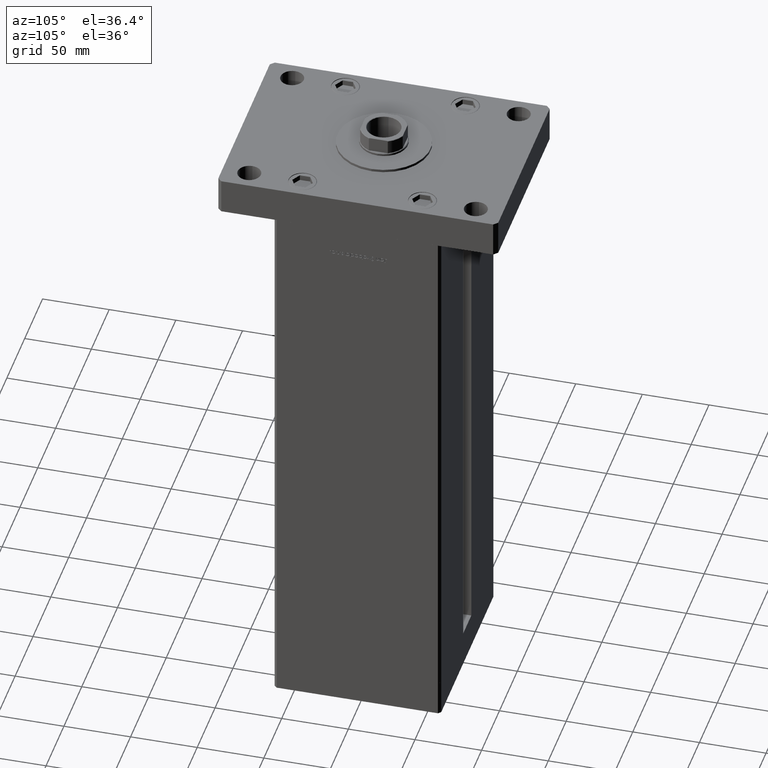
[diagram: clean part render]
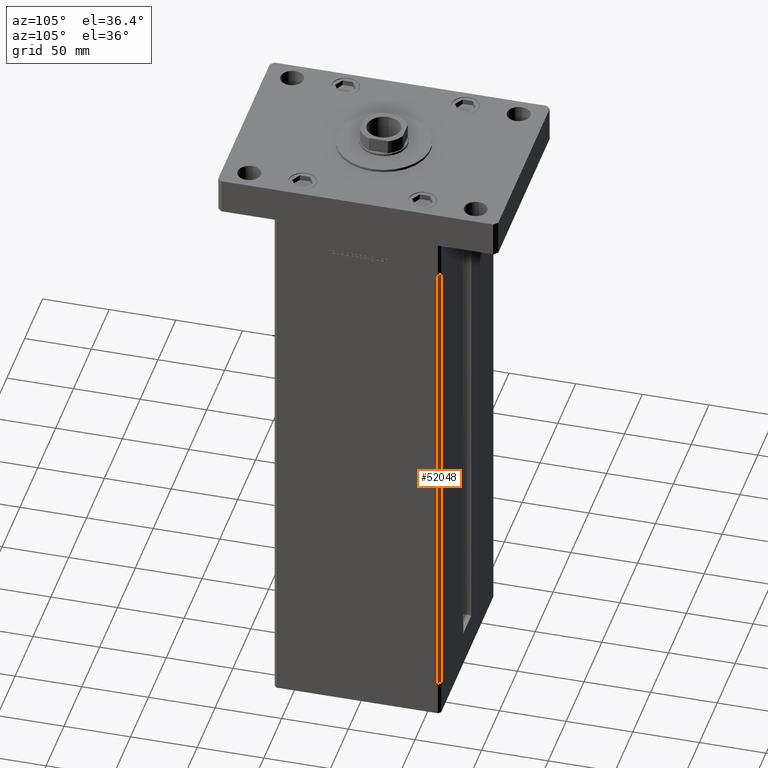
[diagram: same view with one face highlighted and labeled with its STEP entity id]
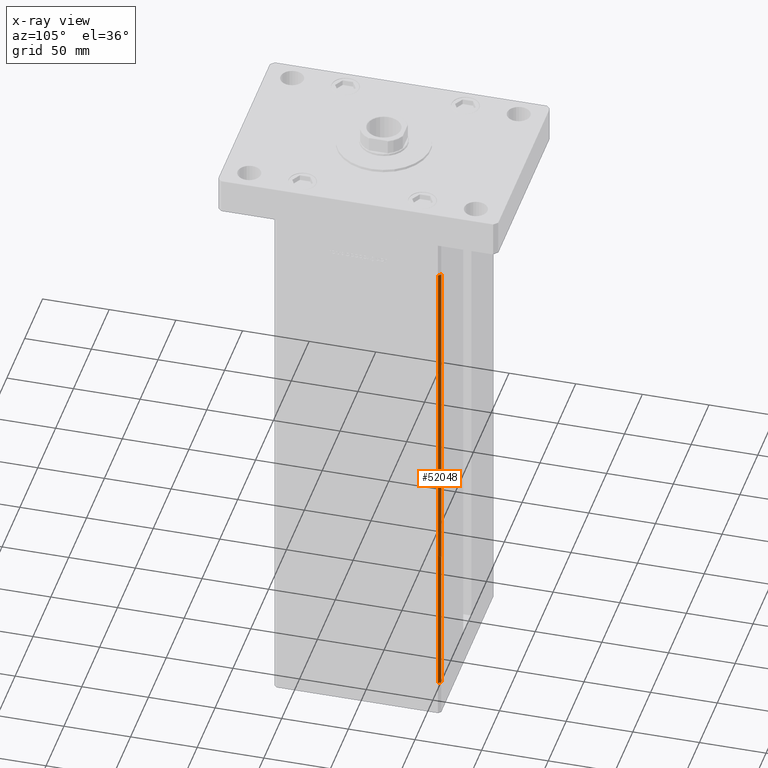
[diagram: x-ray of the same camera — body ghosted, the highlighted face saturated]
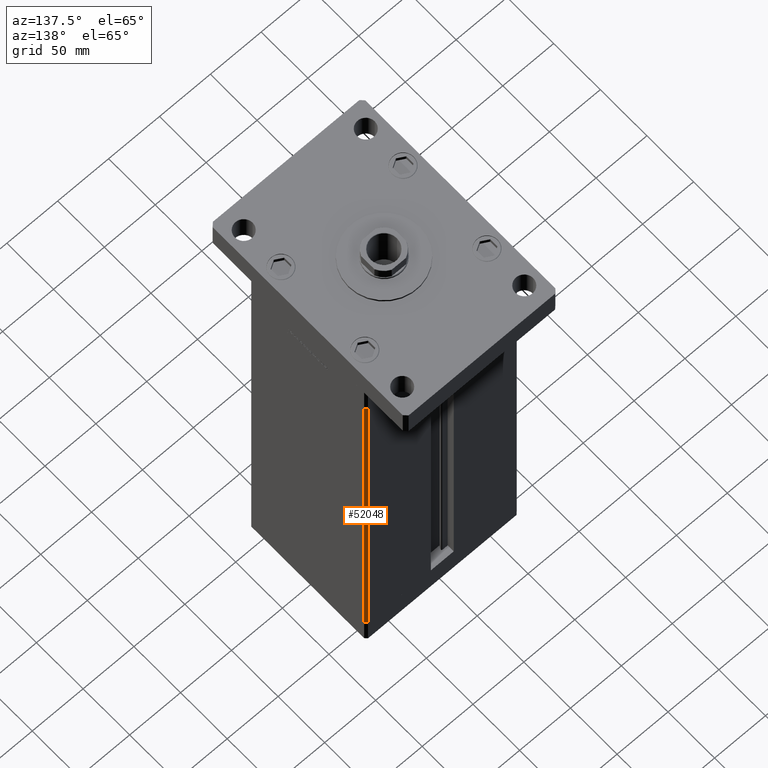
[diagram: same view with one face highlighted and labeled with its STEP entity id]
A machine part, auxiliary view. The second image highlights one B-rep face of the part: STEP entity #52048.
The next image is the same camera in x-ray: the body ghosted, the highlighted face saturated — about 0% of this face is hidden behind the body in this view.
A second angle (auxiliary view) of the same face is appended — the face is thin or edge-on in the first view.
In plain terms, the highlighted planar face has unit normal (0.7071, 0.7071, 0).
Its self-contained STEP definition (entity closure, byte-faithful):
#786 = LINE ( 'NONE', #21255, #15577 ) ;
#2598 = VECTOR ( 'NONE', #33315, 1000.000000000000000 ) ;
#2615 = VERTEX_POINT ( 'NONE', #43498 ) ;
#5560 = AXIS2_PLACEMENT_3D ( 'NONE', #35590, #15664, #48237 ) ;
#9933 = DIRECTION ( 'NONE',  ( 0.7071067811865474617, -0.7071067811865474617, 0.000000000000000000 ) ) ;
#10084 = CARTESIAN_POINT ( 'NONE',  ( 73.00000000000001421, 62.50000000000000000, 367.0000000000000000 ) ) ;
#11637 = FACE_OUTER_BOUND ( 'NONE', #32941, .T. ) ;
#12303 = VERTEX_POINT ( 'NONE', #10084 ) ;
#13141 = CARTESIAN_POINT ( 'NONE',  ( 73.00000000000001421, 62.50000000000000000, 367.0000000000000000 ) ) ;
#13495 = LINE ( 'NONE', #29897, #36698 ) ;
#13736 = ORIENTED_EDGE ( 'NONE', *, *, #14805, .T. ) ;
#14805 = EDGE_CURVE ( 'NONE', #2615, #34904, #13495, .T. ) ;
#15577 = VECTOR ( 'NONE', #9933, 1000.000000000000114 ) ;
#15664 = DIRECTION ( 'NONE',  ( 0.7071067811865475727, 0.7071067811865475727, -0.000000000000000000 ) ) ;
#21255 = CARTESIAN_POINT ( 'NONE',  ( 73.00000000000001421, 62.50000000000000000, 0.000000000000000000 ) ) ;
#21828 = DIRECTION ( 'NONE',  ( -0.000000000000000000, -0.000000000000000000, -1.000000000000000000 ) ) ;
#24988 = EDGE_CURVE ( 'NONE', #12303, #2615, #38467, .T. ) ;
#25191 = CARTESIAN_POINT ( 'NONE',  ( 75.00000000000001421, 60.50000000000000000, 0.000000000000000000 ) ) ;
#27551 = VECTOR ( 'NONE', #42769, 1000.000000000000114 ) ;
#29897 = CARTESIAN_POINT ( 'NONE',  ( 75.00000000000001421, 60.50000000000000000, 367.0000000000000000 ) ) ;
#32083 = PLANE ( 'NONE',  #5560 ) ;
#32941 = EDGE_LOOP ( 'NONE', ( #36505, #49811, #42068, #13736 ) ) ;
#33315 = DIRECTION ( 'NONE',  ( -0.000000000000000000, -0.000000000000000000, -1.000000000000000000 ) ) ;
#34904 = VERTEX_POINT ( 'NONE', #25191 ) ;
#34984 = VERTEX_POINT ( 'NONE', #39421 ) ;
#35590 = CARTESIAN_POINT ( 'NONE',  ( 73.00000000000001421, 62.50000000000000000, 367.0000000000000000 ) ) ;
#36505 = ORIENTED_EDGE ( 'NONE', *, *, #41054, .F. ) ;
#36698 = VECTOR ( 'NONE', #21828, 1000.000000000000000 ) ;
#38467 = LINE ( 'NONE', #38735, #27551 ) ;
#38735 = CARTESIAN_POINT ( 'NONE',  ( 73.00000000000001421, 62.50000000000000000, 367.0000000000000000 ) ) ;
#38892 = EDGE_CURVE ( 'NONE', #12303, #34984, #41927, .T. ) ;
#39421 = CARTESIAN_POINT ( 'NONE',  ( 73.00000000000001421, 62.50000000000000000, 0.000000000000000000 ) ) ;
#41054 = EDGE_CURVE ( 'NONE', #34984, #34904, #786, .T. ) ;
#41927 = LINE ( 'NONE', #13141, #2598 ) ;
#42068 = ORIENTED_EDGE ( 'NONE', *, *, #24988, .T. ) ;
#42769 = DIRECTION ( 'NONE',  ( 0.7071067811865474617, -0.7071067811865474617, 0.000000000000000000 ) ) ;
#43498 = CARTESIAN_POINT ( 'NONE',  ( 75.00000000000001421, 60.50000000000000000, 367.0000000000000000 ) ) ;
#48237 = DIRECTION ( 'NONE',  ( -0.7071067811865474617, 0.7071067811865474617, 0.000000000000000000 ) ) ;
#49811 = ORIENTED_EDGE ( 'NONE', *, *, #38892, .F. ) ;
#52048 = ADVANCED_FACE ( 'NONE', ( #11637 ), #32083, .T. ) ;